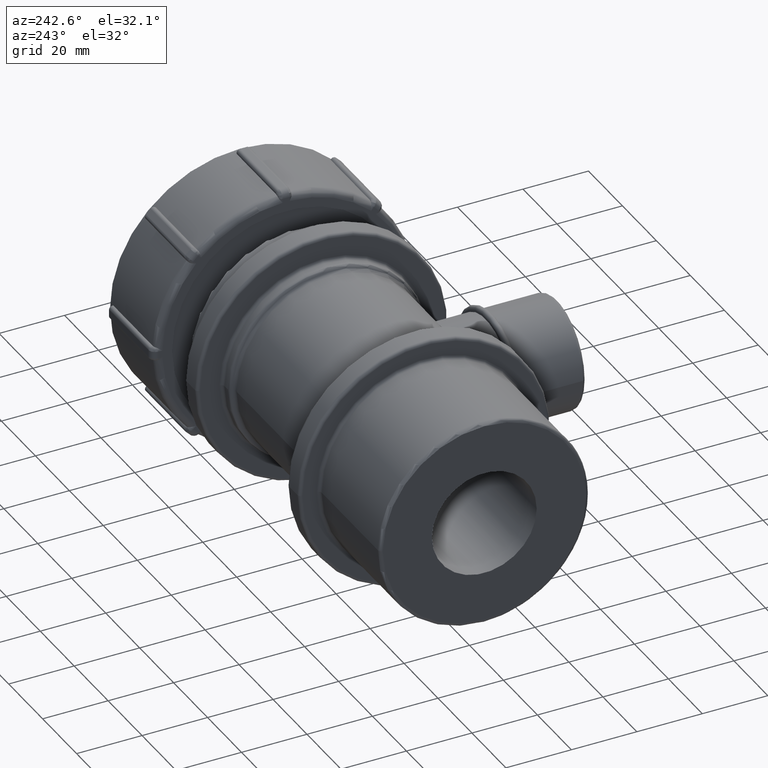
[diagram: clean part render]
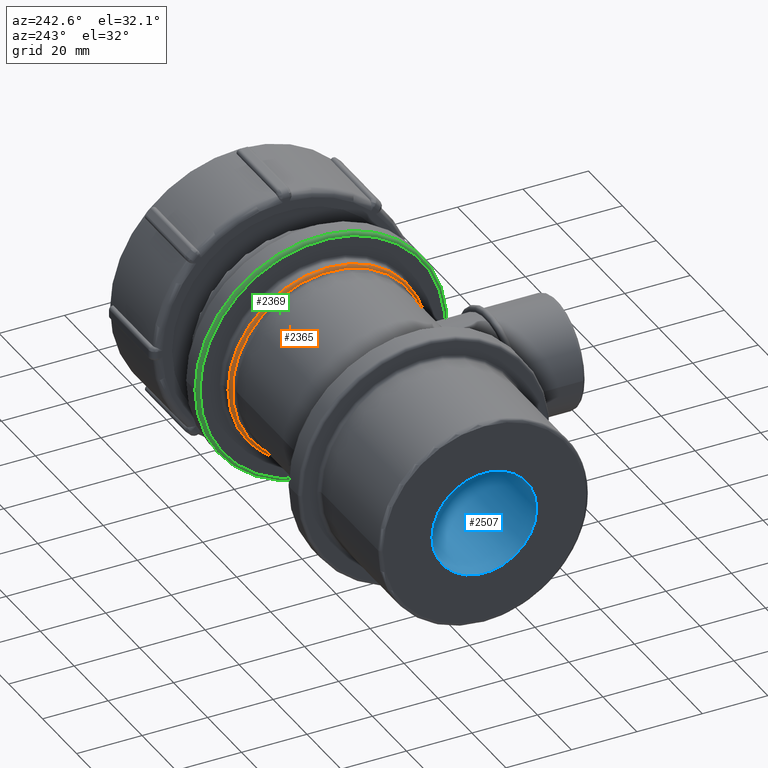
[diagram: same view with three faces highlighted in distinct colors, each labeled with its STEP entity id]
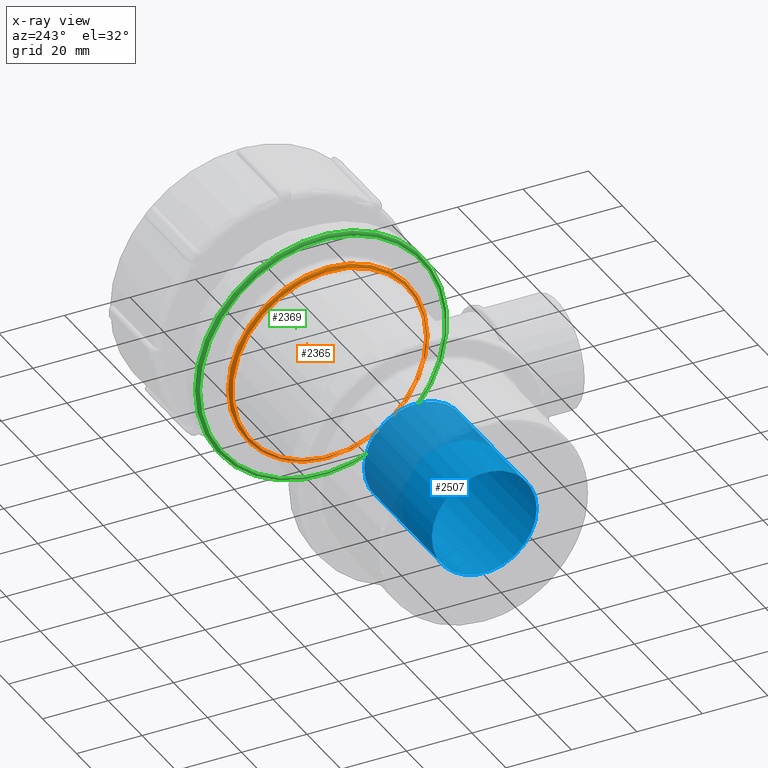
[diagram: x-ray of the same camera — body ghosted, the three highlighted faces saturated]
A machine part, auxiliary view with three faces highlighted in distinct colors.
The next image is the same camera in x-ray (body ghosted, the three faces saturated) — at least one of them is partly hidden behind the body in this view.
Their STEP definitions:

[orange] entity #2365 — the highlighted toroidal blend (fillet) surface has major radius 29.4 mm and minor (blend) radius 1 mm.
#322=CIRCLE('',#2551,29.6);
#323=CIRCLE('',#2553,30.4);
#503=TOROIDAL_SURFACE('',#2552,29.4,1.);
#536=FACE_BOUND('',#779,.T.);
#593=FACE_OUTER_BOUND('',#778,.T.);
#778=EDGE_LOOP('',(#1632));
#779=EDGE_LOOP('',(#1633));
#1040=VERTEX_POINT('',#3723);
#1041=VERTEX_POINT('',#3726);
#1272=EDGE_CURVE('',#1040,#1040,#322,.T.);
#1273=EDGE_CURVE('',#1041,#1041,#323,.T.);
#1632=ORIENTED_EDGE('',*,*,#1272,.F.);
#1633=ORIENTED_EDGE('',*,*,#1273,.T.);
#2365=ADVANCED_FACE('',(#593,#536),#503,.T.);
#2551=AXIS2_PLACEMENT_3D('',#3724,#2908,#2909);
#2552=AXIS2_PLACEMENT_3D('',#3725,#2910,#2911);
#2553=AXIS2_PLACEMENT_3D('',#3727,#2912,#2913);
#2908=DIRECTION('center_axis',(-1.,0.,0.));
#2909=DIRECTION('ref_axis',(0.,1.,1.33839086354592E-14));
#2910=DIRECTION('center_axis',(1.,0.,0.));
#2911=DIRECTION('ref_axis',(0.,0.,-1.));
#2912=DIRECTION('center_axis',(-1.,0.,0.));
#2913=DIRECTION('ref_axis',(0.,-1.,1.83697019872103E-16));
#3723=CARTESIAN_POINT('',(22.6702041028867,-29.6,-3.92538741084118E-13));
#3724=CARTESIAN_POINT('Origin',(22.6702041028867,0.,0.));
#3725=CARTESIAN_POINT('Origin',(23.65,0.,0.));
#3726=CARTESIAN_POINT('',(23.65,30.4,-9.30731567351988E-15));
#3727=CARTESIAN_POINT('Origin',(23.65,0.,0.));

[blue] entity #2507 — the highlighted cylindrical surface (bore or boss wall) has radius 16 mm, axis along (1, 0, 0).
#310=CIRCLE('',#2527,16.);
#487=CIRCLE('',#2826,16.);
#567=FACE_BOUND('',#952,.T.);
#735=FACE_OUTER_BOUND('',#951,.T.);
#951=EDGE_LOOP('',(#2267));
#952=EDGE_LOOP('',(#2268));
#1028=VERTEX_POINT('',#3687);
#1245=VERTEX_POINT('',#4959);
#1260=EDGE_CURVE('',#1028,#1028,#310,.T.);
#1589=EDGE_CURVE('',#1245,#1245,#487,.T.);
#2267=ORIENTED_EDGE('',*,*,#1260,.F.);
#2268=ORIENTED_EDGE('',*,*,#1589,.T.);
#2344=CYLINDRICAL_SURFACE('',#2827,16.);
#2507=ADVANCED_FACE('',(#735,#567),#2344,.F.);
#2527=AXIS2_PLACEMENT_3D('',#3688,#2860,#2861);
#2826=AXIS2_PLACEMENT_3D('',#4960,#3562,#3563);
#2827=AXIS2_PLACEMENT_3D('',#4961,#3564,#3565);
#2860=DIRECTION('center_axis',(1.,0.,0.));
#2861=DIRECTION('ref_axis',(0.,0.,-1.));
#3562=DIRECTION('center_axis',(1.,0.,0.));
#3563=DIRECTION('ref_axis',(0.,0.,-1.));
#3564=DIRECTION('center_axis',(1.,0.,0.));
#3565=DIRECTION('ref_axis',(0.,1.,0.));
#3687=CARTESIAN_POINT('',(-68.7,16.,0.));
#3688=CARTESIAN_POINT('Origin',(-68.7,0.,0.));
#4959=CARTESIAN_POINT('',(-28.7,16.,0.));
#4960=CARTESIAN_POINT('Origin',(-28.7,0.,0.));
#4961=CARTESIAN_POINT('Origin',(-48.7,0.,0.));

[green] entity #2369 — the highlighted toroidal blend (fillet) surface has major radius 37.4 mm and minor (blend) radius 1 mm.
#326=CIRCLE('',#2559,37.4);
#327=CIRCLE('',#2561,38.4);
#505=TOROIDAL_SURFACE('',#2560,37.4,1.);
#540=FACE_BOUND('',#787,.T.);
#597=FACE_OUTER_BOUND('',#786,.T.);
#786=EDGE_LOOP('',(#1640));
#787=EDGE_LOOP('',(#1641));
#1044=VERTEX_POINT('',#3735);
#1045=VERTEX_POINT('',#3738);
#1276=EDGE_CURVE('',#1044,#1044,#326,.T.);
#1277=EDGE_CURVE('',#1045,#1045,#327,.T.);
#1640=ORIENTED_EDGE('',*,*,#1276,.T.);
#1641=ORIENTED_EDGE('',*,*,#1277,.T.);
#2369=ADVANCED_FACE('',(#597,#540),#505,.T.);
#2559=AXIS2_PLACEMENT_3D('',#3736,#2924,#2925);
#2560=AXIS2_PLACEMENT_3D('',#3737,#2926,#2927);
#2561=AXIS2_PLACEMENT_3D('',#3739,#2928,#2929);
#2924=DIRECTION('center_axis',(1.,0.,0.));
#2925=DIRECTION('ref_axis',(0.,-1.,1.83697019872103E-16));
#2926=DIRECTION('center_axis',(1.,0.,0.));
#2927=DIRECTION('ref_axis',(0.,0.,-1.));
#2928=DIRECTION('center_axis',(-1.,0.,0.));
#2929=DIRECTION('ref_axis',(0.,-1.,1.83697019872103E-16));
#3735=CARTESIAN_POINT('',(26.7,37.4,-2.29008951440555E-15));
#3736=CARTESIAN_POINT('Origin',(26.7,0.,0.));
#3737=CARTESIAN_POINT('Origin',(27.7,0.,0.));
#3738=CARTESIAN_POINT('',(27.7,38.4,-1.17566092718146E-14));
#3739=CARTESIAN_POINT('Origin',(27.7,0.,0.));